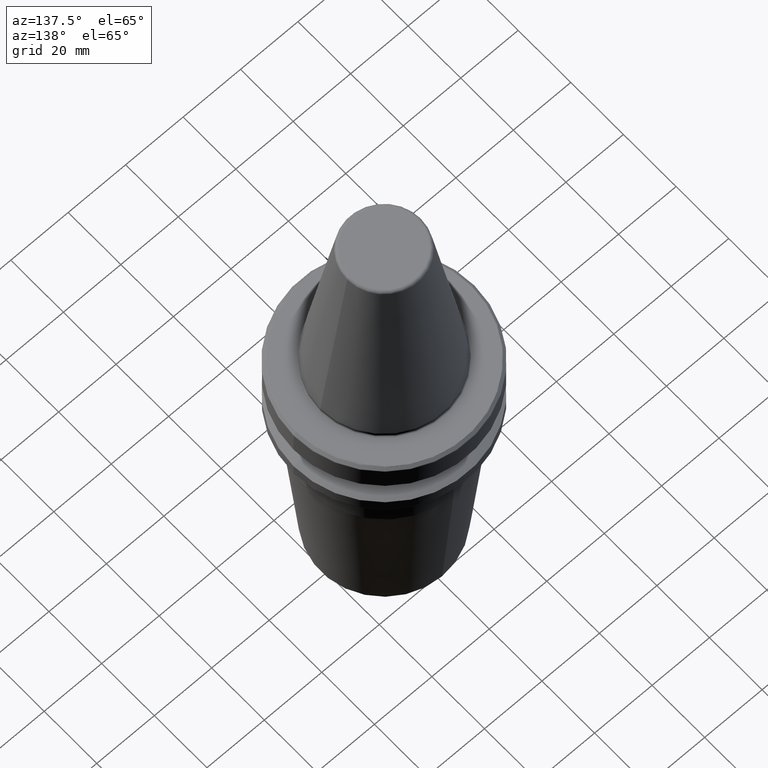
[diagram: clean part render]
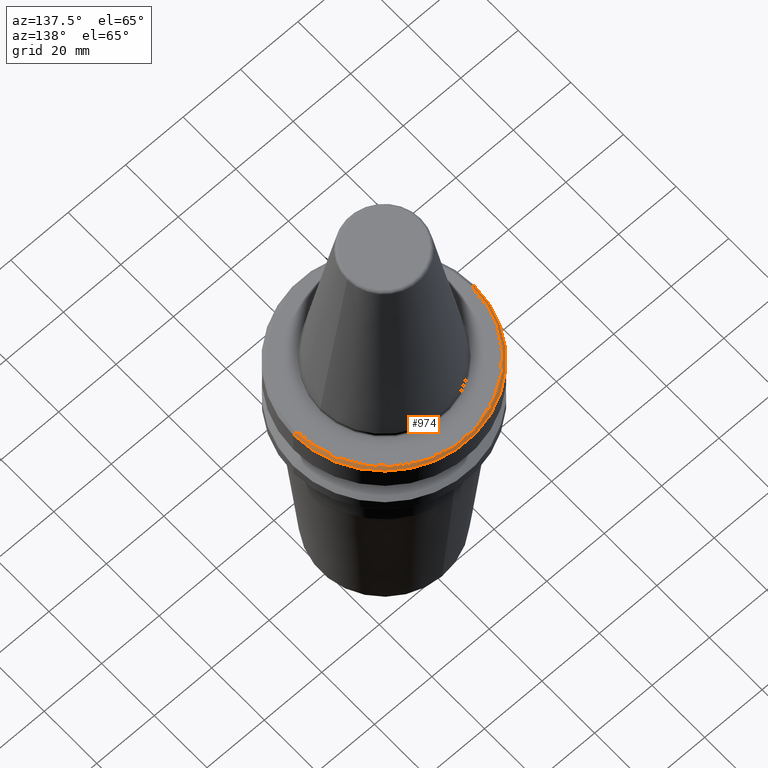
[diagram: same view with one face highlighted and labeled with its STEP entity id]
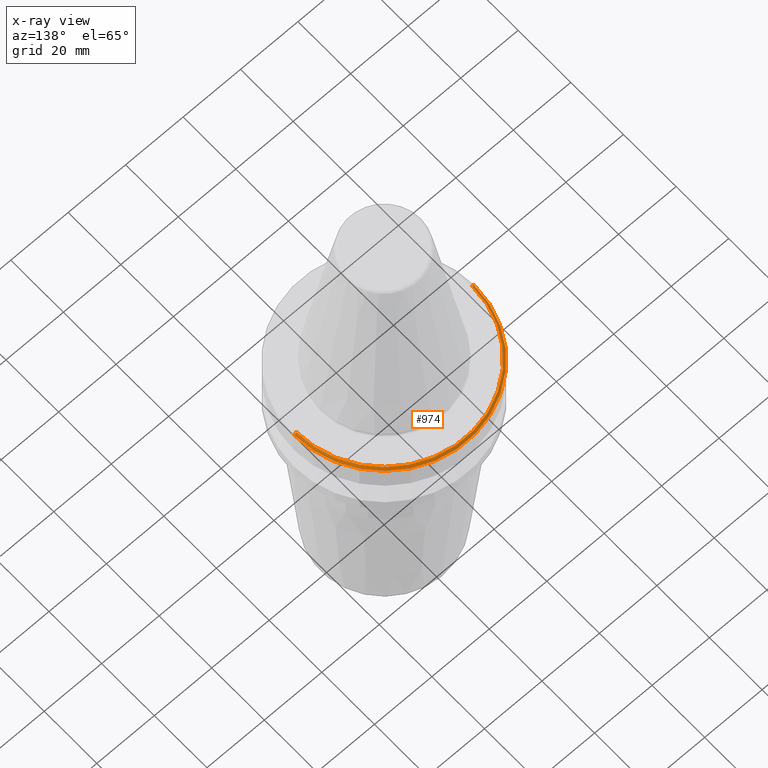
[diagram: x-ray of the same camera — body ghosted, the highlighted face saturated]
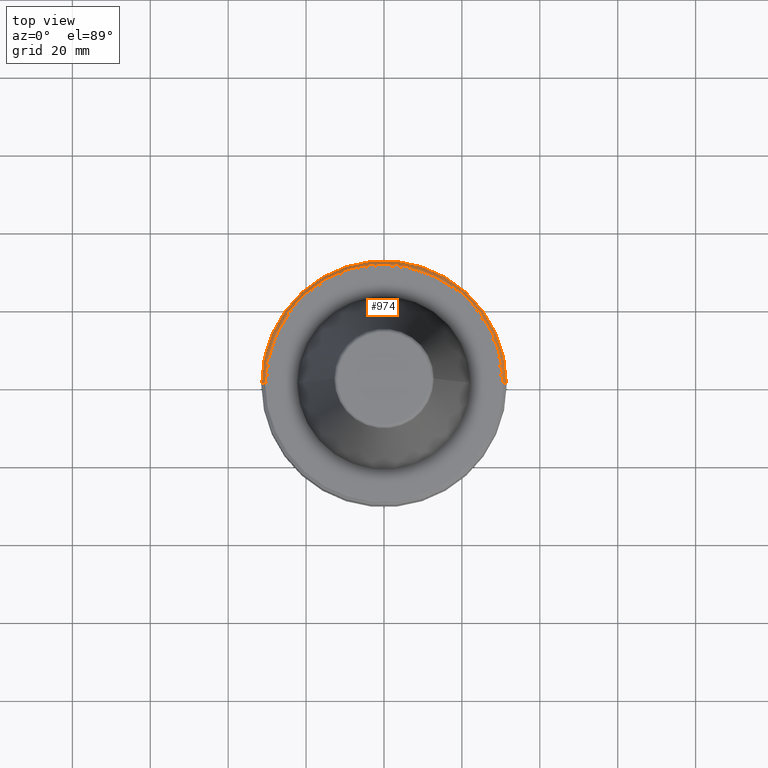
[diagram: same view with one face highlighted and labeled with its STEP entity id]
A machine part, auxiliary view. The second image highlights one B-rep face of the part: STEP entity #974.
The next image is the same camera in x-ray: the body ghosted, the highlighted face saturated — about 0% of this face is hidden behind the body in this view.
A second angle (top view) of the same face is appended — the face is thin or edge-on in the first view.
In plain terms, the highlighted conical surface has half-angle 45 deg.
Its self-contained STEP definition (entity closure, byte-faithful):
#14 = CARTESIAN_POINT ( 'NONE',  ( -31.38284271247461600, 0.0000000000000000000, -2.882842712474617700 ) ) ;
#38 = DIRECTION ( 'NONE',  ( 1.000000000000000000, 0.0000000000000000000, 0.0000000000000000000 ) ) ;
#101 = LINE ( 'NONE', #102, #1055 ) ;
#102 = CARTESIAN_POINT ( 'NONE',  ( 30.61715728752538400, 3.749520367115901800E-015, -2.117157287525386800 ) ) ;
#134 = CARTESIAN_POINT ( 'NONE',  ( 31.38284271247461600, 3.843289787597687600E-015, -2.882842712474617700 ) ) ;
#253 = DIRECTION ( 'NONE',  ( -1.000000000000000000, 0.0000000000000000000, 0.0000000000000000000 ) ) ;
#281 = VERTEX_POINT ( 'NONE', #835 ) ;
#308 = VERTEX_POINT ( 'NONE', #750 ) ;
#347 = DIRECTION ( 'NONE',  ( 0.0000000000000000000, 0.0000000000000000000, -1.000000000000000000 ) ) ;
#360 = AXIS2_PLACEMENT_3D ( 'NONE', #938, #347, #253 ) ;
#404 = VERTEX_POINT ( 'NONE', #134 ) ;
#419 = DIRECTION ( 'NONE',  ( -0.7071067811865474600, 0.0000000000000000000, -0.7071067811865475700 ) ) ;
#433 = DIRECTION ( 'NONE',  ( -0.0000000000000000000, -0.0000000000000000000, 1.000000000000000000 ) ) ;
#460 = EDGE_LOOP ( 'NONE', ( #1071, #882, #632, #1241 ) ) ;
#484 = DIRECTION ( 'NONE',  ( -0.0000000000000000000, -0.0000000000000000000, 1.000000000000000000 ) ) ;
#536 = CARTESIAN_POINT ( 'NONE',  ( 0.0000000000000000000, 0.0000000000000000000, -2.882842712474617700 ) ) ;
#537 = EDGE_CURVE ( 'NONE', #404, #1270, #694, .T. ) ;
#632 = ORIENTED_EDGE ( 'NONE', *, *, #537, .T. ) ;
#649 = LINE ( 'NONE', #1127, #1169 ) ;
#656 = AXIS2_PLACEMENT_3D ( 'NONE', #536, #433, #38 ) ;
#668 = EDGE_CURVE ( 'NONE', #308, #281, #803, .T. ) ;
#694 = CIRCLE ( 'NONE', #656, 31.38284271247461600 ) ;
#750 = CARTESIAN_POINT ( 'NONE',  ( 30.61715728752538400, 3.796405077356795100E-015, -2.117157287525386800 ) ) ;
#757 = FACE_OUTER_BOUND ( 'NONE', #460, .T. ) ;
#803 = CIRCLE ( 'NONE', #1224, 30.61715728752538400 ) ;
#835 = CARTESIAN_POINT ( 'NONE',  ( -30.61715728752538400, 0.0000000000000000000, -2.117157287525386800 ) ) ;
#860 = EDGE_CURVE ( 'NONE', #281, #1270, #649, .T. ) ;
#882 = ORIENTED_EDGE ( 'NONE', *, *, #1255, .T. ) ;
#938 = CARTESIAN_POINT ( 'NONE',  ( 0.0000000000000000000, 0.0000000000000000000, -2.117157287525386800 ) ) ;
#970 = CONICAL_SURFACE ( 'NONE', #360, 30.61715728752538400, 0.7853981633974482800 ) ;
#974 = ADVANCED_FACE ( 'NONE', ( #757 ), #970, .T. ) ;
#1055 = VECTOR ( 'NONE', #1199, 1000.000000000000000 ) ;
#1071 = ORIENTED_EDGE ( 'NONE', *, *, #668, .F. ) ;
#1091 = CARTESIAN_POINT ( 'NONE',  ( 0.0000000000000000000, 0.0000000000000000000, -2.117157287525386800 ) ) ;
#1127 = CARTESIAN_POINT ( 'NONE',  ( -30.61715728752538400, 0.0000000000000000000, -2.117157287525386800 ) ) ;
#1169 = VECTOR ( 'NONE', #419, 1000.000000000000000 ) ;
#1199 = DIRECTION ( 'NONE',  ( 0.7071067811865474600, 8.659560562354931600E-017, -0.7071067811865475700 ) ) ;
#1201 = DIRECTION ( 'NONE',  ( 1.000000000000000000, 0.0000000000000000000, 0.0000000000000000000 ) ) ;
#1224 = AXIS2_PLACEMENT_3D ( 'NONE', #1091, #484, #1201 ) ;
#1241 = ORIENTED_EDGE ( 'NONE', *, *, #860, .F. ) ;
#1255 = EDGE_CURVE ( 'NONE', #308, #404, #101, .T. ) ;
#1270 = VERTEX_POINT ( 'NONE', #14 ) ;